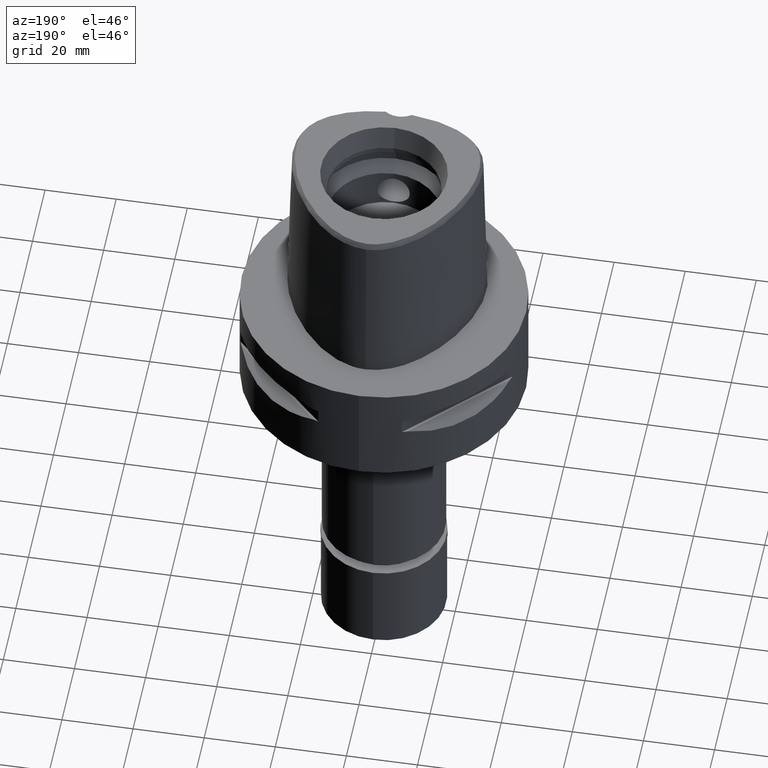
[diagram: clean part render]
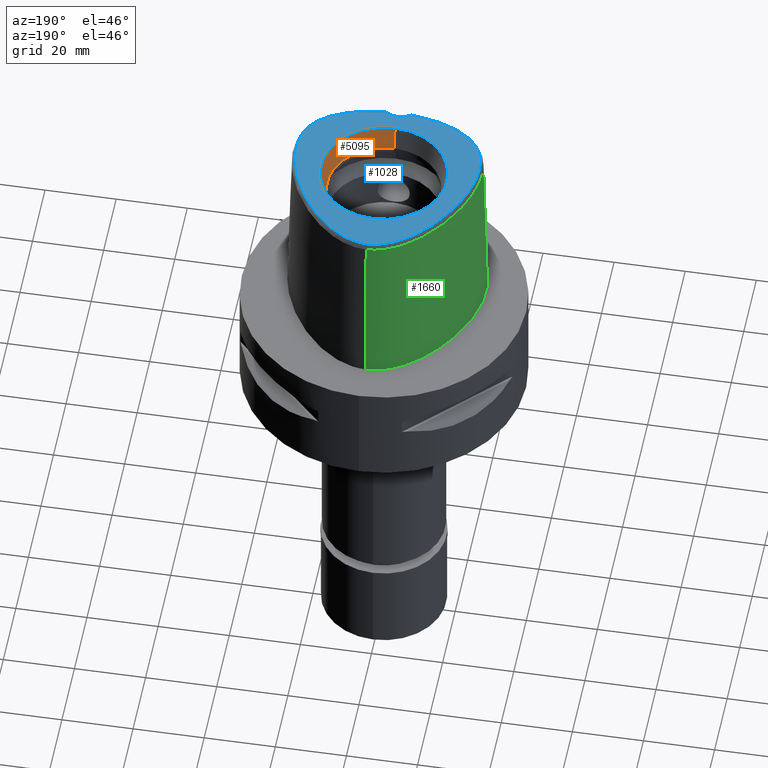
[diagram: same view with three faces highlighted in distinct colors, each labeled with its STEP entity id]
A machine part, auxiliary view with three faces highlighted in distinct colors.
Their STEP definitions:

[orange] entity #5095 — the highlighted conical surface has half-angle 15 deg.
#210 = VERTEX_POINT ( 'NONE', #2669 ) ;
#222 = CONICAL_SURFACE ( 'NONE', #4446, 16.85743741578000154, 0.2617993877991000029 ) ;
#298 = CARTESIAN_POINT ( 'NONE',  ( 0.0000000000000000000, 17.71487483155999954, 48.00000000000000000 ) ) ;
#459 = EDGE_CURVE ( 'NONE', #3315, #883, #4088, .T. ) ;
#713 = DIRECTION ( 'NONE',  ( 0.0000000000000000000, 0.0000000000000000000, 1.000000000000000000 ) ) ;
#883 = VERTEX_POINT ( 'NONE', #3407 ) ;
#1000 = VERTEX_POINT ( 'NONE', #298 ) ;
#1034 = DIRECTION ( 'NONE',  ( 0.0000000000000000000, 0.0000000000000000000, 1.000000000000000000 ) ) ;
#1041 = CIRCLE ( 'NONE', #1706, 17.71487483155999954 ) ;
#1568 = FACE_OUTER_BOUND ( 'NONE', #1589, .T. ) ;
#1589 = EDGE_LOOP ( 'NONE', ( #2359, #4867, #2053, #4509 ) ) ;
#1597 = CARTESIAN_POINT ( 'NONE',  ( 0.0000000000000000000, -16.00000000000000000, 41.60000000000000142 ) ) ;
#1680 = CARTESIAN_POINT ( 'NONE',  ( 0.0000000000000000000, -16.00000000000000000, 41.60000000000000142 ) ) ;
#1706 = AXIS2_PLACEMENT_3D ( 'NONE', #1783, #1034, #2614 ) ;
#1723 = EDGE_CURVE ( 'NONE', #883, #1000, #3869, .T. ) ;
#1783 = CARTESIAN_POINT ( 'NONE',  ( 0.0000000000000000000, 0.0000000000000000000, 48.00000000000000000 ) ) ;
#1930 = DIRECTION ( 'NONE',  ( 0.0000000000000000000, -0.2588190451025869088, 0.9659258262890505486 ) ) ;
#2053 = ORIENTED_EDGE ( 'NONE', *, *, #2418, .T. ) ;
#2359 = ORIENTED_EDGE ( 'NONE', *, *, #1723, .F. ) ;
#2418 = EDGE_CURVE ( 'NONE', #3315, #210, #3986, .T. ) ;
#2582 = DIRECTION ( 'NONE',  ( 0.0000000000000000000, 0.0000000000000000000, 1.000000000000000000 ) ) ;
#2614 = DIRECTION ( 'NONE',  ( 0.0000000000000000000, -1.000000000000000000, 0.0000000000000000000 ) ) ;
#2669 = CARTESIAN_POINT ( 'NONE',  ( 0.0000000000000000000, -17.71487483155999954, 48.00000000000000000 ) ) ;
#2707 = CARTESIAN_POINT ( 'NONE',  ( 0.0000000000000000000, 0.0000000000000000000, 44.79999999999999716 ) ) ;
#3093 = AXIS2_PLACEMENT_3D ( 'NONE', #4089, #2582, #4503 ) ;
#3315 = VERTEX_POINT ( 'NONE', #1680 ) ;
#3407 = CARTESIAN_POINT ( 'NONE',  ( 0.0000000000000000000, 16.00000000000000000, 41.60000000000000142 ) ) ;
#3478 = DIRECTION ( 'NONE',  ( 0.0000000000000000000, 0.2588190451025869088, 0.9659258262890505486 ) ) ;
#3869 = LINE ( 'NONE', #4667, #5101 ) ;
#3986 = LINE ( 'NONE', #1597, #4601 ) ;
#4088 = CIRCLE ( 'NONE', #3093, 16.00000000000000000 ) ;
#4089 = CARTESIAN_POINT ( 'NONE',  ( 0.0000000000000000000, 0.0000000000000000000, 41.60000000000000142 ) ) ;
#4322 = DIRECTION ( 'NONE',  ( 0.0000000000000000000, 1.000000000000000000, 0.0000000000000000000 ) ) ;
#4446 = AXIS2_PLACEMENT_3D ( 'NONE', #2707, #713, #4322 ) ;
#4503 = DIRECTION ( 'NONE',  ( 0.0000000000000000000, -1.000000000000000000, 0.0000000000000000000 ) ) ;
#4509 = ORIENTED_EDGE ( 'NONE', *, *, #4802, .T. ) ;
#4601 = VECTOR ( 'NONE', #1930, 1000.000000000000000 ) ;
#4667 = CARTESIAN_POINT ( 'NONE',  ( 0.0000000000000000000, 16.00000000000000000, 41.60000000000000142 ) ) ;
#4802 = EDGE_CURVE ( 'NONE', #210, #1000, #1041, .T. ) ;
#4867 = ORIENTED_EDGE ( 'NONE', *, *, #459, .F. ) ;
#5095 = ADVANCED_FACE ( 'NONE', ( #1568 ), #222, .F. ) ;
#5101 = VECTOR ( 'NONE', #3478, 1000.000000000000000 ) ;

[blue] entity #1028 — the highlighted planar face has unit normal (0, 0, 1).
#8 = CARTESIAN_POINT ( 'NONE',  ( 24.32795549673370772, -12.97211154200306460, 48.00000000001223555 ) ) ;
#22 = CARTESIAN_POINT ( 'NONE',  ( -18.05758772859757499, -19.36077714811488093, 47.99999999999477751 ) ) ;
#44 = CARTESIAN_POINT ( 'NONE',  ( -6.203520479231986684, 26.11107304853101141, 47.99999999999815259 ) ) ;
#61 = CARTESIAN_POINT ( 'NONE',  ( 9.079666835764575339, -22.67647771863383355, 48.00000000001173106 ) ) ;
#94 = CARTESIAN_POINT ( 'NONE',  ( -14.35357212123012616, 20.00684525407455183, 47.99999999999852918 ) ) ;
#116 = CARTESIAN_POINT ( 'NONE',  ( -21.64189922317169490, 9.570126786845586153, 47.99999999999801048 ) ) ;
#210 = VERTEX_POINT ( 'NONE', #2669 ) ;
#298 = CARTESIAN_POINT ( 'NONE',  ( 0.0000000000000000000, 17.71487483155999954, 48.00000000000000000 ) ) ;
#338 = CARTESIAN_POINT ( 'NONE',  ( 23.81116373424486099, 4.548397580874626200, 48.00000000000717648 ) ) ;
#344 = VERTEX_POINT ( 'NONE', #3295 ) ;
#364 = CARTESIAN_POINT ( 'NONE',  ( 23.26225374360337739, -14.77782433121194927, 48.00000000000923706 ) ) ;
#378 = CARTESIAN_POINT ( 'NONE',  ( -14.81597509389440148, -20.94671102737024881, 47.99999999999584332 ) ) ;
#394 = CARTESIAN_POINT ( 'NONE',  ( 25.14129527416575627, -0.06715740301631951958, 48.00000000000022737 ) ) ;
#417 = CARTESIAN_POINT ( 'NONE',  ( 19.78466709479669561, 12.88995995781714399, 47.99999999999869971 ) ) ;
#430 = CARTESIAN_POINT ( 'NONE',  ( -1.406513445700418918, 27.50987728443805125, 48.00000000000217426 ) ) ;
#443 = CARTESIAN_POINT ( 'NONE',  ( 21.18145661121652168, -17.09850743469696965, 48.00000000000058265 ) ) ;
#452 = CARTESIAN_POINT ( 'NONE',  ( -23.81131852266027948, 4.547972304024429313, 48.00000000000515143 ) ) ;
#476 = B_SPLINE_CURVE_WITH_KNOTS ( 'NONE', 3,
 ( #1829, #4221, #3827, #3438, #1464, #4629, #1082, #4249, #695, #2274, #3464, #5046, #1551, #2352, #3132, #4686, #773, #822, #3882, #1579, #1601, #2816, #417, #3938, #4404, #3207, #2404, #338, #800, #3909, #394, #3989, #748, #1963, #2302, #4709, #4785, #4329, #3544, #1516, #1209, #5071, #2717, #8, #1231, #1911, #364, #3159, #4735, #3489, #443, #2327, #2743, #4304, #1183, #3103, #4383, #1987, #2767, #2383, #2010, #61, #1134, #3591, #4356, #1633, #1934 ),
 .UNSPECIFIED., .F., .F.,
 ( 4, 1, 1, 1, 1, 1, 1, 1, 1, 1, 1, 1, 1, 1, 1, 1, 1, 1, 1, 1, 1, 1, 1, 1, 1, 1, 1, 1, 1, 1, 1, 1, 1, 1, 1, 1, 1, 1, 1, 1, 1, 1, 1, 1, 1, 1, 1, 1, 1, 1, 1, 1, 1, 1, 1, 1, 1, 1, 1, 1, 1, 1, 1, 1, 4 ),
 ( 0.0000000000000000000, 0.01585579672639991777, 0.03171159345210006197, 0.04756739017779998413, 0.06342318690360004840, 0.07927898362929997056, 0.09513478035499989272, 0.1109905770807000369, 0.1268463738063999591, 0.1427021705320999923, 0.1585579672578999455, 0.1744137639835999787, 0.1902695607093000119, 0.2061253574349999340, 0.2219811541607000782, 0.2378369508864000004, 0.2536927476120999225, 0.2695485443380000179, 0.2854043410636999401, 0.3012601377893999732, 0.3171159345151000064, 0.3329717312407999286, 0.3488275279665000728, 0.3646833246923000260, 0.3805391214179999482, 0.3963949181436999813, 0.4122507148694000145, 0.4281065115951000477, 0.4439623083207999699, 0.4598181050465000030, 0.4756739017723000673, 0.4915296984979999895, 0.5073854952237000226, 0.5232412919494000558, 0.5390970886750999780, 0.5549528854007999001, 0.5708086821265999644, 0.5866644788522999976, 0.6025202755780000308, 0.6183760723036999529, 0.6342318690293999861, 0.6500876657551999394, 0.6659434624808999725, 0.6817992592067000368, 0.6976550559323999590, 0.7135108526580999921, 0.7293666493838000253, 0.7452224461095000585, 0.7610782428351999807, 0.7769340395610000449, 0.7927898362866999671, 0.8086456330124000003, 0.8245014297380999224, 0.8403572264637999556, 0.8562130231894999888, 0.8720688199152000220, 0.8879246166409999752, 0.9037804133667199924, 0.9196362100924300176, 0.9354920068181400428, 0.9513478035438499569, 0.9672036002695799661, 0.9830593969952899913, 0.9989151937210170029, 1.000000000000000000 ),
 .UNSPECIFIED. ) ;
#500 = CARTESIAN_POINT ( 'NONE',  ( -24.78798701905787638, 1.406367702425548538, 47.99999999999597122 ) ) ;
#513 = EDGE_LOOP ( 'NONE', ( #2478, #4285, #2150 ) ) ;
#523 = CARTESIAN_POINT ( 'NONE',  ( -19.77143225162151907, -18.24138896763952644, 48.00000000000249401 ) ) ;
#539 = AXIS2_PLACEMENT_3D ( 'NONE', #1923, #2729, #736 ) ;
#638 = VERTEX_POINT ( 'NONE', #2145 ) ;
#695 = CARTESIAN_POINT ( 'NONE',  ( 5.331982176208874158, 26.48833275828314271, 48.00000000000198241 ) ) ;
#717 = VERTEX_POINT ( 'NONE', #5048 ) ;
#718 = DIRECTION ( 'NONE',  ( 0.0000000000000000000, 0.0000000000000000000, 1.000000000000000000 ) ) ;
#736 = DIRECTION ( 'NONE',  ( 1.000000000000000000, 0.0000000000000000000, 0.0000000000000000000 ) ) ;
#748 = CARTESIAN_POINT ( 'NONE',  ( 25.60516200877453130, -2.794192459352460745, 48.00000000000189715 ) ) ;
#773 = CARTESIAN_POINT ( 'NONE',  ( 13.24267791555362095, 21.12418368643609767, 48.00000000000156319 ) ) ;
#800 = CARTESIAN_POINT ( 'NONE',  ( 24.34579675531461973, 2.948329282943511043, 48.00000000001264056 ) ) ;
#811 = CARTESIAN_POINT ( 'NONE',  ( -25.12916461511497701, -10.86541650940748305, 47.99999999999975131 ) ) ;
#822 = CARTESIAN_POINT ( 'NONE',  ( 14.35433142683246110, 20.00604447575191713, 48.00000000000167688 ) ) ;
#835 = CARTESIAN_POINT ( 'NONE',  ( -11.07816725942378966, 23.03133635782052480, 48.00000000000034817 ) ) ;
#885 = CARTESIAN_POINT ( 'NONE',  ( -24.62272929601614990, -12.31262433039161763, 47.99999999999684519 ) ) ;
#910 = CARTESIAN_POINT ( 'NONE',  ( -24.32740975878640555, -12.97324844465297566, 48.00000000000115818 ) ) ;
#952 = AXIS2_PLACEMENT_3D ( 'NONE', #4274, #718, #4730 ) ;
#981 = ORIENTED_EDGE ( 'NONE', *, *, #1578, .F. ) ;
#1000 = VERTEX_POINT ( 'NONE', #298 ) ;
#1028 = ADVANCED_FACE ( 'NONE', ( #5060, #2704 ), #4319, .T. ) ;
#1034 = DIRECTION ( 'NONE',  ( 0.0000000000000000000, 0.0000000000000000000, 1.000000000000000000 ) ) ;
#1041 = CIRCLE ( 'NONE', #1706, 17.71487483155999954 ) ;
#1082 = CARTESIAN_POINT ( 'NONE',  ( 3.680297990135756425, 27.05591354499543755, 48.00000000000463274 ) ) ;
#1134 = CARTESIAN_POINT ( 'NONE',  ( 7.396182376303273465, -22.99483633013899819, 48.00000000000697042 ) ) ;
#1172 = CARTESIAN_POINT ( 'NONE',  ( -3.692743038414145307, -23.43666978756976960, 48.00000000000267875 ) ) ;
#1183 = CARTESIAN_POINT ( 'NONE',  ( 18.06021793802974784, -19.35923481219706588, 48.00000000000124345 ) ) ;
#1195 = CARTESIAN_POINT ( 'NONE',  ( -4.489954052493658310, 26.80204639255709509, 48.00000000000770939 ) ) ;
#1209 = CARTESIAN_POINT ( 'NONE',  ( 25.12949508357444728, -10.86427360166955047, 48.00000000000255795 ) ) ;
#1222 = CARTESIAN_POINT ( 'NONE',  ( -20.74831938584029345, 11.24670202904551353, 48.00000000000017053 ) ) ;
#1231 = CARTESIAN_POINT ( 'NONE',  ( 24.00708073425614941, -13.59389763843064003, 48.00000000001109157 ) ) ;
#1246 = CARTESIAN_POINT ( 'NONE',  ( -16.58720414441573965, 17.44590650687450406, 48.00000000000029843 ) ) ;
#1267 = CARTESIAN_POINT ( 'NONE',  ( -25.78814000082430979, -5.219183132163360384, 48.00000000000524381 ) ) ;
#1295 = CARTESIAN_POINT ( 'NONE',  ( -24.34597371489009277, 2.947766319392882028, 48.00000000000301981 ) ) ;
#1364 = AXIS2_PLACEMENT_3D ( 'NONE', #3517, #5107, #4760 ) ;
#1464 = CARTESIAN_POINT ( 'NONE',  ( 2.140583849880650646, 27.40603513869489660, 48.00000000000225953 ) ) ;
#1516 = CARTESIAN_POINT ( 'NONE',  ( 25.33687583872331217, -10.06999584063372488, 48.00000000000845546 ) ) ;
#1534 = CARTESIAN_POINT ( 'NONE',  ( -10.66374418708377547, -22.30593187528287658, 48.00000000000354561 ) ) ;
#1551 = CARTESIAN_POINT ( 'NONE',  ( 9.029067995420112069, 24.52649931750329415, 48.00000000000886047 ) ) ;
#1578 = EDGE_CURVE ( 'NONE', #1000, #210, #1777, .T. ) ;
#1579 = CARTESIAN_POINT ( 'NONE',  ( 16.58774972841820627, 17.44522137221949976, 48.00000000000767386 ) ) ;
#1590 = CARTESIAN_POINT ( 'NONE',  ( -25.72853642077308578, -4.045150056830097540, 47.99999999999900524 ) ) ;
#1601 = CARTESIAN_POINT ( 'NONE',  ( 17.68852893097503554, 16.00958332232134396, 48.00000000000597566 ) ) ;
#1618 = CARTESIAN_POINT ( 'NONE',  ( -25.33661149944298074, -10.07113708571159272, 48.00000000000527933 ) ) ;
#1633 = CARTESIAN_POINT ( 'NONE',  ( 3.695072017993034752, -23.43648746218643097, 48.00000000000385825 ) ) ;
#1666 = CARTESIAN_POINT ( 'NONE',  ( -21.17991838301995244, -17.09989881138081458, 47.99999999999885603 ) ) ;
#1688 = CARTESIAN_POINT ( 'NONE',  ( -19.78446217835506360, 12.89029827906817616, 48.00000000000235900 ) ) ;
#1706 = AXIS2_PLACEMENT_3D ( 'NONE', #1783, #1034, #2614 ) ;
#1777 = CIRCLE ( 'NONE', #952, 17.71487483155999954 ) ;
#1783 = CARTESIAN_POINT ( 'NONE',  ( 0.0000000000000000000, 0.0000000000000000000, 48.00000000000000000 ) ) ;
#1829 = CARTESIAN_POINT ( 'NONE',  ( -2.553408000949999908E-11, 27.58331912251000162, 48.00000000000000000 ) ) ;
#1886 = EDGE_CURVE ( 'NONE', #638, #717, #2094, .T. ) ;
#1911 = CARTESIAN_POINT ( 'NONE',  ( 23.65541542674895226, -14.18997106324581381, 48.00000000000692069 ) ) ;
#1923 = CARTESIAN_POINT ( 'NONE',  ( 0.0000000000000000000, 0.0000000000000000000, 48.00000000000000000 ) ) ;
#1934 = CARTESIAN_POINT ( 'NONE',  ( 3.652533226355999751, -23.43985283522000174, 48.00000000000000000 ) ) ;
#1950 = CARTESIAN_POINT ( 'NONE',  ( -15.99341638177189218, -20.43562447748576716, 48.00000000000099476 ) ) ;
#1963 = CARTESIAN_POINT ( 'NONE',  ( 25.72845965679956137, -4.044145215521631087, 48.00000000000743938 ) ) ;
#1987 = CARTESIAN_POINT ( 'NONE',  ( 14.81975810290886564, -20.94516920634536561, 48.00000000000678568 ) ) ;
#1999 = CARTESIAN_POINT ( 'NONE',  ( -0.6921675427513680479, 27.57027402750469491, 48.00000000000196110 ) ) ;
#2010 = CARTESIAN_POINT ( 'NONE',  ( 10.66892483387039903, -22.30459704282522537, 48.00000000001040235 ) ) ;
#2021 = CARTESIAN_POINT ( 'NONE',  ( -5.330667503235669180, 26.48886318459817701, 47.99999999999916156 ) ) ;
#2046 = CARTESIAN_POINT ( 'NONE',  ( -22.82072892860091073, -15.36398915678148214, 48.00000000000603961 ) ) ;
#2069 = CARTESIAN_POINT ( 'NONE',  ( -22.45665628223360244, 7.877471279648480262, 47.99999999999928946 ) ) ;
#2088 = CARTESIAN_POINT ( 'NONE',  ( -25.51017841222235560, -9.223923978199115581, 48.00000000000016342 ) ) ;
#2094 = B_SPLINE_CURVE_WITH_KNOTS ( 'NONE', 3,
 ( #3064, #1172, #5087, #2755, #2670, #4264, #1534, #3120, #2341, #378, #1950, #2880, #22, #3196, #523, #2490, #1666, #4393, #2853, #2046, #4443, #4073, #4465, #910, #885, #3628, #811, #1618, #2088, #2804, #2466, #4820, #1267, #1590, #3651, #2828, #3239, #500, #1295, #452, #4049, #2069, #116, #1222, #1688, #3169, #4797, #1246, #2392, #94, #3268, #4746, #835, #2414, #4846, #3218, #3977, #44, #2021, #1195, #2783, #4000, #4370, #430, #1999, #3607, #3579 ),
 .UNSPECIFIED., .F., .F.,
 ( 4, 1, 1, 1, 1, 1, 1, 1, 1, 1, 1, 1, 1, 1, 1, 1, 1, 1, 1, 1, 1, 1, 1, 1, 1, 1, 1, 1, 1, 1, 1, 1, 1, 1, 1, 1, 1, 1, 1, 1, 1, 1, 1, 1, 1, 1, 1, 1, 1, 1, 1, 1, 1, 1, 1, 1, 1, 1, 1, 1, 1, 1, 1, 1, 4 ),
 ( 0.0000000000000000000, 0.001025211071800091744, 0.01688195375320000746, 0.03273869643469995427, 0.04859543911610009204, 0.06445218179750000775, 0.08030892447889992347, 0.09616566716030006123, 0.1120224098416999770, 0.1278791525231999238, 0.1437358952045000304, 0.1595926378859000572, 0.1754493805672999729, 0.1913061232486999996, 0.2071628659301000264, 0.2230196086114999421, 0.2388763512929999999, 0.2547330939744000267, 0.2705898366558000534, 0.2864465793371999691, 0.3023033220184999648, 0.3181600646999001025, 0.3340168073814000493, 0.3498735500627999651, 0.3657302927441999918, 0.3815870354256000185, 0.3974437781070000453, 0.4133005207884000720, 0.4291572634697999877, 0.4450140061513000456, 0.4608707488326000412, 0.4767274915139999569, 0.4925842341953999837, 0.5084409768768000104, 0.5242977195582000371, 0.5401544622396999840, 0.5560112049211000107, 0.5718679476025000374, 0.5877246902838999532, 0.6035814329652000598, 0.6194381756466000866, 0.6352949183280000023, 0.6511516610095000601, 0.6670084036908999758, 0.6828651463723000026, 0.6987218890537000293, 0.7145786317350999450, 0.7304353744164999718, 0.7462921170980000296, 0.7621488597793000253, 0.7780056024607000520, 0.7938623451421000787, 0.8097190878234999944, 0.8255758305049000212, 0.8414325731862999369, 0.8572893158677999947, 0.8731460585492000215, 0.8890028012306000482, 0.9048595439119599959, 0.9207162865933600226, 0.9365730292747700414, 0.9524297719561699571, 0.9682865146375799759, 0.9841432573189800026, 1.000000000000000000 ),
 .UNSPECIFIED. ) ;
#2116 = EDGE_CURVE ( 'NONE', #717, #344, #476, .T. ) ;
#2128 = EDGE_CURVE ( 'NONE', #344, #638, #3274, .T. ) ;
#2145 = CARTESIAN_POINT ( 'NONE',  ( -3.652529789304999941, -23.43985019791999846, 48.00000000000000000 ) ) ;
#2150 = ORIENTED_EDGE ( 'NONE', *, *, #2128, .F. ) ;
#2274 = CARTESIAN_POINT ( 'NONE',  ( 6.204805495149819272, 26.11047595223834605, 48.00000000000726175 ) ) ;
#2302 = CARTESIAN_POINT ( 'NONE',  ( 25.78811069501464104, -5.218135357747751613, 48.00000000000721201 ) ) ;
#2327 = CARTESIAN_POINT ( 'NONE',  ( 20.51253914625195307, -17.67119446946093930, 48.00000000000061107 ) ) ;
#2341 = CARTESIAN_POINT ( 'NONE',  ( -13.53666233734298530, -21.43297585322737930, 47.99999999999874944 ) ) ;
#2352 = CARTESIAN_POINT ( 'NONE',  ( 10.03889926273868127, 23.82643791975360870, 48.00000000000882494 ) ) ;
#2383 = CARTESIAN_POINT ( 'NONE',  ( 12.15683615293691311, -21.88711351951106820, 47.99999999999997868 ) ) ;
#2392 = CARTESIAN_POINT ( 'NONE',  ( -15.47246034442112439, 18.77924032486898653, 48.00000000000290612 ) ) ;
#2404 = CARTESIAN_POINT ( 'NONE',  ( 23.18188527997639881, 6.195157684106848528, 48.00000000000304112 ) ) ;
#2414 = CARTESIAN_POINT ( 'NONE',  ( -10.03780479163847339, 23.82723751530624767, 48.00000000000140687 ) ) ;
#2466 = CARTESIAN_POINT ( 'NONE',  ( -25.74147105879059794, -7.353240448489849257, 48.00000000000159162 ) ) ;
#2478 = ORIENTED_EDGE ( 'NONE', *, *, #2116, .F. ) ;
#2490 = CARTESIAN_POINT ( 'NONE',  ( -20.51077223929847904, -17.67263102127446572, 47.99999999999950973 ) ) ;
#2614 = DIRECTION ( 'NONE',  ( 0.0000000000000000000, -1.000000000000000000, 0.0000000000000000000 ) ) ;
#2669 = CARTESIAN_POINT ( 'NONE',  ( 0.0000000000000000000, -17.71487483155999954, 48.00000000000000000 ) ) ;
#2670 = CARTESIAN_POINT ( 'NONE',  ( -7.390055773641294401, -22.99586658608131629, 47.99999999999932498 ) ) ;
#2704 = FACE_BOUND ( 'NONE', #2988, .T. ) ;
#2717 = CARTESIAN_POINT ( 'NONE',  ( 24.62320007856847326, -12.31148373401311247, 48.00000000000669331 ) ) ;
#2729 = DIRECTION ( 'NONE',  ( 0.0000000000000000000, 0.0000000000000000000, 1.000000000000000000 ) ) ;
#2736 = ORIENTED_EDGE ( 'NONE', *, *, #4802, .F. ) ;
#2743 = CARTESIAN_POINT ( 'NONE',  ( 19.77345709183098066, -18.23990985540388365, 47.99999999999967315 ) ) ;
#2755 = CARTESIAN_POINT ( 'NONE',  ( -5.621443921966159607, -23.25305008129511464, 48.00000000000448352 ) ) ;
#2767 = CARTESIAN_POINT ( 'NONE',  ( 13.54089058450237459, -21.43147460489070966, 48.00000000000824940 ) ) ;
#2783 = CARTESIAN_POINT ( 'NONE',  ( -3.678923649487048753, 27.05630543830366719, 47.99999999999898392 ) ) ;
#2804 = CARTESIAN_POINT ( 'NONE',  ( -25.64644810599106606, -8.319642749356395584, 48.00000000000550671 ) ) ;
#2816 = CARTESIAN_POINT ( 'NONE',  ( 18.76051936065026382, 14.48366014232832732, 48.00000000001285372 ) ) ;
#2828 = CARTESIAN_POINT ( 'NONE',  ( -25.41186334295214166, -1.469639852779993872, 48.00000000000116529 ) ) ;
#2853 = CARTESIAN_POINT ( 'NONE',  ( -22.32985285488276617, -15.94550431091040821, 48.00000000000615330 ) ) ;
#2880 = CARTESIAN_POINT ( 'NONE',  ( -17.07251346402498982, -19.90534499102160382, 47.99999999999827338 ) ) ;
#2988 = EDGE_LOOP ( 'NONE', ( #2736, #981 ) ) ;
#3064 = CARTESIAN_POINT ( 'NONE',  ( -3.652529789304999941, -23.43985019791999846, 48.00000000000000000 ) ) ;
#3103 = CARTESIAN_POINT ( 'NONE',  ( 17.07549476912438635, -19.90378693825492462, 48.00000000000908074 ) ) ;
#3120 = CARTESIAN_POINT ( 'NONE',  ( -12.15213727002773680, -21.88854758767111619, 48.00000000000394351 ) ) ;
#3132 = CARTESIAN_POINT ( 'NONE',  ( 11.07918744940821654, 23.03051546725189169, 48.00000000000082423 ) ) ;
#3159 = CARTESIAN_POINT ( 'NONE',  ( 22.82172265264393118, -15.36274108902206770, 48.00000000000704148 ) ) ;
#3169 = CARTESIAN_POINT ( 'NONE',  ( -18.76020591297632834, 14.48413071376100980, 48.00000000000695621 ) ) ;
#3196 = CARTESIAN_POINT ( 'NONE',  ( -18.95547945644910470, -18.80500687502049573, 48.00000000000218847 ) ) ;
#3207 = CARTESIAN_POINT ( 'NONE',  ( 22.45659887780520947, 7.877591736060656658, 48.00000000000458300 ) ) ;
#3218 = CARTESIAN_POINT ( 'NONE',  ( -8.052265342579033813, 25.13651235630688063, 47.99999999999637623 ) ) ;
#3239 = CARTESIAN_POINT ( 'NONE',  ( -25.14146662215851791, -0.06794041304870930553, 47.99999999999752731 ) ) ;
#3268 = CARTESIAN_POINT ( 'NONE',  ( -13.24182048141069856, 21.12501160990345284, 47.99999999999568701 ) ) ;
#3274 = CIRCLE ( 'NONE', #1364, 6.000000000000002665 ) ;
#3295 = CARTESIAN_POINT ( 'NONE',  ( 3.652533226355999751, -23.43985283522000174, 48.00000000000000000 ) ) ;
#3438 = CARTESIAN_POINT ( 'NONE',  ( 1.407937999592545397, 27.50970958195818028, 48.00000000000246558 ) ) ;
#3464 = CARTESIAN_POINT ( 'NONE',  ( 7.112111422624756152, 25.66156608519798255, 48.00000000000716938 ) ) ;
#3489 = CARTESIAN_POINT ( 'NONE',  ( 21.78596494080941426, -16.52262878100312449, 47.99999999999959499 ) ) ;
#3517 = CARTESIAN_POINT ( 'NONE',  ( 0.0000000000000000000, -28.19999999999999929, 48.00000000000000000 ) ) ;
#3544 = CARTESIAN_POINT ( 'NONE',  ( 25.51037851176426230, -9.222789616917856037, 48.00000000001212186 ) ) ;
#3579 = CARTESIAN_POINT ( 'NONE',  ( -2.553408000949999908E-11, 27.58331912251000162, 48.00000000000000000 ) ) ;
#3591 = CARTESIAN_POINT ( 'NONE',  ( 5.628119991152697565, -23.25222728397175587, 48.00000000000337508 ) ) ;
#3607 = CARTESIAN_POINT ( 'NONE',  ( -0.2321695341564720683, 27.58331912251657769, 47.99999999999752731 ) ) ;
#3628 = CARTESIAN_POINT ( 'NONE',  ( -24.89056289416894430, -11.61105474084670064, 48.00000000000250111 ) ) ;
#3651 = CARTESIAN_POINT ( 'NONE',  ( -25.60527911802743617, -2.795135548250292423, 48.00000000000474643 ) ) ;
#3827 = CARTESIAN_POINT ( 'NONE',  ( 0.6937438505403716871, 27.57019898700950478, 48.00000000000281375 ) ) ;
#3882 = CARTESIAN_POINT ( 'NONE',  ( 15.47311546589609854, 18.77848662925139678, 48.00000000000503775 ) ) ;
#3909 = CARTESIAN_POINT ( 'NONE',  ( 24.78780591084813167, 1.407047860335504108, 47.99999999999845102 ) ) ;
#3938 = CARTESIAN_POINT ( 'NONE',  ( 20.74842146925440289, 11.24651447313606134, 48.00000000000866152 ) ) ;
#3977 = CARTESIAN_POINT ( 'NONE',  ( -7.110865803014362996, 25.66222324296633417, 48.00000000000397193 ) ) ;
#3989 = CARTESIAN_POINT ( 'NONE',  ( 25.41171405094603841, -1.468769615953148255, 48.00000000000520117 ) ) ;
#4000 = CARTESIAN_POINT ( 'NONE',  ( -2.895995683504538842, 27.25632069045302330, 48.00000000000338929 ) ) ;
#4049 = CARTESIAN_POINT ( 'NONE',  ( -23.18199738827003031, 6.194888181192859555, 48.00000000000181899 ) ) ;
#4073 = CARTESIAN_POINT ( 'NONE',  ( -23.65469623605201477, -14.19111717468698686, 48.00000000000073896 ) ) ;
#4221 = CARTESIAN_POINT ( 'NONE',  ( 0.2325907962420827035, 27.58331912251327012, 48.00000000000081002 ) ) ;
#4249 = CARTESIAN_POINT ( 'NONE',  ( 4.491298471527488623, 26.80158405531848231, 48.00000000000654410 ) ) ;
#4264 = CARTESIAN_POINT ( 'NONE',  ( -9.073991136863565288, -22.67767904108731969, 47.99999999999684519 ) ) ;
#4274 = CARTESIAN_POINT ( 'NONE',  ( 0.0000000000000000000, 0.0000000000000000000, 48.00000000000000000 ) ) ;
#4285 = ORIENTED_EDGE ( 'NONE', *, *, #1886, .F. ) ;
#4304 = CARTESIAN_POINT ( 'NONE',  ( 18.95779336837248508, -18.80349047534947715, 48.00000000000073896 ) ) ;
#4319 = PLANE ( 'NONE',  #539 ) ;
#4329 = CARTESIAN_POINT ( 'NONE',  ( 25.64658655007783494, -8.318518488027452307, 48.00000000001078604 ) ) ;
#4356 = CARTESIAN_POINT ( 'NONE',  ( 4.358863301034094029, -23.38302754646320381, 48.00000000000636646 ) ) ;
#4370 = CARTESIAN_POINT ( 'NONE',  ( -2.139154069217541476, 27.40627708266804774, 48.00000000000468958 ) ) ;
#4383 = CARTESIAN_POINT ( 'NONE',  ( 15.99678577414479363, -20.43406366493001158, 48.00000000000254374 ) ) ;
#4393 = CARTESIAN_POINT ( 'NONE',  ( -21.78463111685217513, -16.52397191851181901, 48.00000000000464695 ) ) ;
#4404 = CARTESIAN_POINT ( 'NONE',  ( 21.64191216433082587, 9.570096010442222578, 48.00000000000341061 ) ) ;
#4443 = CARTESIAN_POINT ( 'NONE',  ( -23.26140416530115473, -14.77902311538156255, 47.99999999999670308 ) ) ;
#4465 = CARTESIAN_POINT ( 'NONE',  ( -24.00645943640846625, -13.59502449744030805, 48.00000000000041922 ) ) ;
#4629 = CARTESIAN_POINT ( 'NONE',  ( 2.897393261679864107, 27.25600202852417908, 48.00000000000071765 ) ) ;
#4686 = CARTESIAN_POINT ( 'NONE',  ( 12.14811716929212437, 22.13187320258709079, 47.99999999999985789 ) ) ;
#4709 = CARTESIAN_POINT ( 'NONE',  ( 25.79052179444665072, -6.319355031380196053, 48.00000000001080025 ) ) ;
#4730 = DIRECTION ( 'NONE',  ( 0.0000000000000000000, 1.000000000000000000, 0.0000000000000000000 ) ) ;
#4735 = CARTESIAN_POINT ( 'NONE',  ( 22.33100613406375601, -15.94420923685072466, 48.00000000000493827 ) ) ;
#4746 = CARTESIAN_POINT ( 'NONE',  ( -12.14717624328801016, 22.13270362301003757, 47.99999999999980105 ) ) ;
#4760 = DIRECTION ( 'NONE',  ( 0.6087555377260667200, 0.7933578607966567109, 0.0000000000000000000 ) ) ;
#4785 = CARTESIAN_POINT ( 'NONE',  ( 25.74155027847521637, -7.352132003089936418, 48.00000000000579803 ) ) ;
#4797 = CARTESIAN_POINT ( 'NONE',  ( -17.68810259327355183, 16.01016819644468825, 48.00000000000110134 ) ) ;
#4802 = EDGE_CURVE ( 'NONE', #210, #1000, #1041, .T. ) ;
#4820 = CARTESIAN_POINT ( 'NONE',  ( -25.79049889473665047, -6.320436011330606618, 47.99999999999880629 ) ) ;
#4846 = CARTESIAN_POINT ( 'NONE',  ( -9.027913645276317567, 24.52726119145669514, 47.99999999999685230 ) ) ;
#5046 = CARTESIAN_POINT ( 'NONE',  ( 8.053467330374505906, 25.13580020532249293, 48.00000000000466827 ) ) ;
#5048 = CARTESIAN_POINT ( 'NONE',  ( -2.553408000949999908E-11, 27.58331912251000162, 48.00000000000000000 ) ) ;
#5060 = FACE_OUTER_BOUND ( 'NONE', #513, .T. ) ;
#5071 = CARTESIAN_POINT ( 'NONE',  ( 24.89096213678870129, -11.60991207239820078, 48.00000000000040501 ) ) ;
#5087 = CARTESIAN_POINT ( 'NONE',  ( -4.354443962178160987, -23.38344539136317479, 48.00000000000426326 ) ) ;
#5107 = DIRECTION ( 'NONE',  ( 0.0000000000000000000, 0.0000000000000000000, 1.000000000000000000 ) ) ;

[green] entity #1660 — the highlighted face is a freeform B-spline surface patch.
#29 = CARTESIAN_POINT ( 'NONE',  ( -1.451045074373000022E-08, -24.57504746727000011, 40.00000005214000254 ) ) ;
#52 = CARTESIAN_POINT ( 'NONE',  ( -17.14519265487999888, 19.02219895896999802, 31.32395470758999423 ) ) ;
#78 = CARTESIAN_POINT ( 'NONE',  ( -27.06950058470999920, -5.357664960112000330, 31.32395470758999423 ) ) ;
#81 = CARTESIAN_POINT ( 'NONE',  ( -4.160790905031581666, -24.72274124955069396, 26.84178595757023800 ) ) ;
#100 = CARTESIAN_POINT ( 'NONE',  ( 0.6077626423947999346, 29.58843421414999852, -0.9304144962650000572 ) ) ;
#105 = CARTESIAN_POINT ( 'NONE',  ( -1.482686770870139670, -24.81966152212502763, 29.30289444251078734 ) ) ;
#121 = CARTESIAN_POINT ( 'NONE',  ( -26.01411825428999691, 1.699187955590999888, 31.32395470758999423 ) ) ;
#128 = CARTESIAN_POINT ( 'NONE',  ( -3.900686180413632798, -24.73222278675434538, 27.34720371155059482 ) ) ;
#143 = CARTESIAN_POINT ( 'NONE',  ( -26.77222810418911081, 1.900468739774732407, 1.591330557344089458E-06 ) ) ;
#152 = ORIENTED_EDGE ( 'NONE', *, *, #618, .F. ) ;
#153 = CARTESIAN_POINT ( 'NONE',  ( -2.652045588673546117, -24.78435656486181671, 28.70018943685018797 ) ) ;
#171 = CARTESIAN_POINT ( 'NONE',  ( -26.00056140252999981, -13.24168030123999884, 15.19677010566000064 ) ) ;
#172 = CARTESIAN_POINT ( 'NONE',  ( -4.472216406693000579, -24.20008985674000357, 46.52070903171000538 ) ) ;
#178 = CARTESIAN_POINT ( 'NONE',  ( -4.201380620709785241, -24.72153596869751624, 26.74670933509912274 ) ) ;
#192 = CARTESIAN_POINT ( 'NONE',  ( -21.19046238773000113, -19.29498366458999925, 15.19677010566000064 ) ) ;
#197 = CARTESIAN_POINT ( 'NONE',  ( -3.245740051672676874, -24.92006245179830159, 21.81130774429478336 ) ) ;
#201 = LINE ( 'NONE', #2605, #949 ) ;
#231 = CARTESIAN_POINT ( 'NONE',  ( -9.304563385799507813, 26.79191402844792691, 1.591330557344089458E-06 ) ) ;
#243 = CARTESIAN_POINT ( 'NONE',  ( -2.334460937771000388, -24.41161095319999674, 47.45113930950999759 ) ) ;
#257 = CARTESIAN_POINT ( 'NONE',  ( -25.20914246289913763, 6.827421859969049045, 1.591330557344089458E-06 ) ) ;
#270 = CARTESIAN_POINT ( 'NONE',  ( -20.94550184267999526, -18.97246393747999704, 31.32395470758999423 ) ) ;
#278 = CARTESIAN_POINT ( 'NONE',  ( -3.864901861996223875, -24.85421915751039990, 22.59833191710567846 ) ) ;
#307 = CARTESIAN_POINT ( 'NONE',  ( -2.897876354792337406, 28.19692242653904302, 46.52070903171008354 ) ) ;
#308 = CARTESIAN_POINT ( 'NONE',  ( -2.039991806420665466, -25.00858519317946360, 20.93235562228052515 ) ) ;
#313 = CARTESIAN_POINT ( 'NONE',  ( -17.75297948082780408, 19.52218747459670567, 1.591330557344089458E-06 ) ) ;
#317 = VERTEX_POINT ( 'NONE', #2881 ) ;
#360 = CARTESIAN_POINT ( 'NONE',  ( -4.602965878455999693, -24.35127227233000013, 40.00000000000000000 ) ) ;
#412 = CARTESIAN_POINT ( 'NONE',  ( -4.472216406693000579, -24.20008985674000357, 46.52070903171000538 ) ) ;
#437 = CARTESIAN_POINT ( 'NONE',  ( -2.979937747177999974, 28.57037854773999896, 31.32395470758999423 ) ) ;
#457 = CARTESIAN_POINT ( 'NONE',  ( -27.47379250810000073, -5.347524337083999768, 15.19677010566000064 ) ) ;
#466 = CARTESIAN_POINT ( 'NONE',  ( -3.192130741525159188, -24.76262039752748123, 28.24235843699961634 ) ) ;
#484 = CARTESIAN_POINT ( 'NONE',  ( -17.45811262076999881, 19.27961880187999810, 15.19677010566000064 ) ) ;
#488 = CARTESIAN_POINT ( 'NONE',  ( -4.156037652092124723, -24.81598364112163679, 23.14362525770374646 ) ) ;
#506 = CARTESIAN_POINT ( 'NONE',  ( -6.271543170702000403, 28.37237220565999962, -0.9304144962650000572 ) ) ;
#511 = CARTESIAN_POINT ( 'NONE',  ( -2.352923008986410824, -24.79499099983797805, 28.89459205334613046 ) ) ;
#528 = CARTESIAN_POINT ( 'NONE',  ( -27.70696775949999946, -8.754869100894998368, -0.9304144962650000572 ) ) ;
#538 = CARTESIAN_POINT ( 'NONE',  ( -2.944900302943597836, -24.77298581947536249, 28.46923970402221826 ) ) ;
#552 = CARTESIAN_POINT ( 'NONE',  ( -15.29776364837130131, -22.96525386911048017, 1.591330557344089458E-06 ) ) ;
#558 = CARTESIAN_POINT ( 'NONE',  ( -25.65830880206000231, -14.81383149384000042, -0.9304144962650000572 ) ) ;
#564 = CARTESIAN_POINT ( 'NONE',  ( -2.249867388139983770, -24.79844751147312820, 28.95562542824797703 ) ) ;
#590 = CARTESIAN_POINT ( 'NONE',  ( -3.265305598819546962, -24.91820214815111711, 21.83126415608266058 ) ) ;
#607 = CARTESIAN_POINT ( 'NONE',  ( -2.354156827870999447, -24.81494219842000248, 31.32395470758999423 ) ) ;
#613 = CARTESIAN_POINT ( 'NONE',  ( -3.957281473798043514, -24.84276546235786043, 22.75305380327923999 ) ) ;
#618 = EDGE_CURVE ( 'NONE', #4721, #4061, #5120, .T. ) ;
#643 = CARTESIAN_POINT ( 'NONE',  ( -27.68378749877611966, -8.751933588728844526, 1.591330557344089458E-06 ) ) ;
#647 = VERTEX_POINT ( 'NONE', #1754 ) ;
#655 = CARTESIAN_POINT ( 'NONE',  ( -17.98126122912999847, -20.40884541595000101, 47.45113930950999759 ) ) ;
#689 = CARTESIAN_POINT ( 'NONE',  ( -12.44957317646822759, 23.16260189109472378, 46.52070903171007643 ) ) ;
#723 = CARTESIAN_POINT ( 'NONE',  ( -1.597093597969000331E-11, -25.57499999999999929, 7.627232179174998351E-14 ) ) ;
#769 = CARTESIAN_POINT ( 'NONE',  ( -26.68853359098858036, -5.367220537272795688, 46.52070903171007643 ) ) ;
#794 = CARTESIAN_POINT ( 'NONE',  ( -26.52477687770729986, -8.605158286270006229, 46.52070903171007643 ) ) ;
#817 = CARTESIAN_POINT ( 'NONE',  ( -3.067023396894000165, 28.96669974098000111, 15.19677010566000064 ) ) ;
#840 = CARTESIAN_POINT ( 'NONE',  ( -8.894849806042000040, 26.12169677061000073, 31.32395470758999423 ) ) ;
#844 = CARTESIAN_POINT ( 'NONE',  ( -2.466259342607413974, -24.79105701084886348, 28.82372012011356688 ) ) ;
#864 = CARTESIAN_POINT ( 'NONE',  ( -12.96695409482999928, 23.75598709301999989, 15.19677010566000064 ) ) ;
#872 = CARTESIAN_POINT ( 'NONE',  ( -3.657706900528191252, -24.74222987758969694, 27.72260022702113247 ) ) ;
#889 = CARTESIAN_POINT ( 'NONE',  ( -24.48145223199000142, 6.531540498034000386, 31.32395470758999423 ) ) ;
#894 = CARTESIAN_POINT ( 'NONE',  ( -4.515545264919024859, -24.72200876241213052, 25.57765437787082163 ) ) ;
#919 = CARTESIAN_POINT ( 'NONE',  ( -26.76156704091999927, -1.884109322480999937, 31.32395470758999423 ) ) ;
#920 = CARTESIAN_POINT ( 'NONE',  ( -4.516620139914707011, -24.24973684088320525, 44.34713935447333455 ) ) ;
#924 = CARTESIAN_POINT ( 'NONE',  ( -1.003044292487226929, -24.82866638025621953, 29.44055839642896899 ) ) ;
#940 = CARTESIAN_POINT ( 'NONE',  ( -23.81701505771999905, -15.41783915992999887, 47.45113930950999759 ) ) ;
#945 = CARTESIAN_POINT ( 'NONE',  ( -3.205390121192459585, -24.76204090357539656, 28.22925085367092279 ) ) ;
#949 = VECTOR ( 'NONE', #4603, 1000.000000000000000 ) ;
#964 = CARTESIAN_POINT ( 'NONE',  ( -15.01246784126000122, -22.23414197163999972, 31.32395470758999423 ) ) ;
#989 = CARTESIAN_POINT ( 'NONE',  ( -6.695047936570999170, -25.26858194668999857, -0.9304144962650000572 ) ) ;
#1014 = CARTESIAN_POINT ( 'NONE',  ( -24.60869382197000022, -14.20783600182000050, 47.45113930950999759 ) ) ;
#1021 = CARTESIAN_POINT ( 'NONE',  ( -2.349040166738161517, -24.99044712210619679, 21.10040994411799176 ) ) ;
#1027 = CARTESIAN_POINT ( 'NONE',  ( -27.53737507918980754, -1.765625006019590604, 1.591330557344089458E-06 ) ) ;
#1045 = CARTESIAN_POINT ( 'NONE',  ( -18.17462484748000051, -20.76404276641000024, 31.32395470758999423 ) ) ;
#1092 = B_SPLINE_CURVE_WITH_KNOTS ( 'NONE', 3,
 ( #3277, #920, #1252, #2834 ),
 .UNSPECIFIED., .F., .F.,
 ( 4, 4 ),
 ( 0.0000000000000000000, 1.000000000000000000 ),
 .UNSPECIFIED. ) ;
#1106 = CARTESIAN_POINT ( 'NONE',  ( -27.85475985755525130, -5.337968751000538248, 1.591330557344089458E-06 ) ) ;
#1131 = LINE ( 'NONE', #2006, #1450 ) ;
#1159 = CARTESIAN_POINT ( 'NONE',  ( -0.2769662722958332046, -24.83629963748000335, 29.55000000000000426 ) ) ;
#1178 = CARTESIAN_POINT ( 'NONE',  ( -21.32746397970282004, 12.31340991043510336, 46.52070903171007643 ) ) ;
#1204 = CARTESIAN_POINT ( 'NONE',  ( -25.64632274977620696, 1.601536978524322974, 46.52070903171007643 ) ) ;
#1227 = CARTESIAN_POINT ( 'NONE',  ( -21.30723581618000040, 12.30173103159000192, 47.45113930950999759 ) ) ;
#1251 = CARTESIAN_POINT ( 'NONE',  ( -17.77103258665999874, 19.53703864478000085, -0.9304144962650000572 ) ) ;
#1252 = CARTESIAN_POINT ( 'NONE',  ( -4.560197131398992632, -24.30012325357083469, 42.17356967723666372 ) ) ;
#1257 = CARTESIAN_POINT ( 'NONE',  ( -4.322680882352819332, -24.71812462909636210, 26.45319451589574911 ) ) ;
#1275 = CARTESIAN_POINT ( 'NONE',  ( 0.8850788438951999737, 29.16624660684000148, 15.19677010566000064 ) ) ;
#1283 = CARTESIAN_POINT ( 'NONE',  ( -2.182391158249094243, -24.80062287573413471, 28.99314679185867050 ) ) ;
#1289 = CARTESIAN_POINT ( 'NONE',  ( -1.451045074373000022E-08, -24.57504746727000011, 40.00000005214000254 ) ) ;
#1300 = CARTESIAN_POINT ( 'NONE',  ( -16.83227268898999895, 18.76477911606999882, 47.45113930950999759 ) ) ;
#1305 = CARTESIAN_POINT ( 'NONE',  ( -4.544092989177814346, -24.72741046393047171, 25.25074796832975821 ) ) ;
#1309 = CARTESIAN_POINT ( 'NONE',  ( 3.864279361662000249E-11, 29.57499999998999840, 6.979602081476998784E-14 ) ) ;
#1318 = CARTESIAN_POINT ( 'NONE',  ( -3.149084865917926912, 29.34015621089753978, 1.591330557344089458E-06 ) ) ;
#1325 = FACE_OUTER_BOUND ( 'NONE', #4772, .T. ) ;
#1330 = CARTESIAN_POINT ( 'NONE',  ( -4.340344041599830227, -24.78724112967246640, 23.63256450709635459 ) ) ;
#1345 = CARTESIAN_POINT ( 'NONE',  ( -22.57751557229000028, -16.93548377021999940, 47.45113930950999759 ) ) ;
#1352 = CARTESIAN_POINT ( 'NONE',  ( -1.371865276106448261, -24.82198728018541090, 29.33894196721532666 ) ) ;
#1372 = CARTESIAN_POINT ( 'NONE',  ( -25.63065465921999930, -13.07945040407999926, 31.32395470758999423 ) ) ;
#1381 = CARTESIAN_POINT ( 'NONE',  ( -1.985135560754999918E-12, -25.06378435148999984, 20.44999999999999929 ) ) ;
#1397 = CARTESIAN_POINT ( 'NONE',  ( 0.8392169870222999650, -24.78463082815999741, 31.32395470758999423 ) ) ;
#1402 = ORIENTED_EDGE ( 'NONE', *, *, #2450, .T. ) ;
#1419 = CARTESIAN_POINT ( 'NONE',  ( -25.26074791591000235, -12.91722050693000057, 47.45113930950999759 ) ) ;
#1426 = CARTESIAN_POINT ( 'NONE',  ( -3.227056402119971246, -24.92183285210593269, 21.79239637393090234 ) ) ;
#1450 = VECTOR ( 'NONE', #1906, 1000.000000000000227 ) ;
#1485 = CARTESIAN_POINT ( 'NONE',  ( -11.43620194735858320, -23.01113699852997385, 46.52070903171007643 ) ) ;
#1486 = CARTESIAN_POINT ( 'NONE',  ( -0.5686770761292725407, -25.06378435149000694, 20.45000000000000639 ) ) ;
#1509 = EDGE_CURVE ( 'NONE', #4721, #1715, #2876, .T. ) ;
#1511 = CARTESIAN_POINT ( 'NONE',  ( -26.38518529509247657, -1.941591755871297842, 46.52070903171007643 ) ) ;
#1523 = EDGE_CURVE ( 'NONE', #2803, #317, #2692, .T. ) ;
#1546 = CARTESIAN_POINT ( 'NONE',  ( -24.62887906780623126, -14.21948995895104417, 46.52070903171007643 ) ) ;
#1596 = CARTESIAN_POINT ( 'NONE',  ( -3.083107012282089165, -24.50056602082094415, 40.00000010711480058 ) ) ;
#1652 = CARTESIAN_POINT ( 'NONE',  ( -4.549921019084919749, -24.74001865967037261, 24.72536366591872437 ) ) ;
#1660 = ADVANCED_FACE ( 'NONE', ( #1325 ), #3309, .T. ) ;
#1672 = CARTESIAN_POINT ( 'NONE',  ( -26.36214109994000054, -1.945111151877000122, 47.45113930950999759 ) ) ;
#1677 = CARTESIAN_POINT ( 'NONE',  ( -1.611811031578106901, -24.81663505490543642, 29.25526689574284589 ) ) ;
#1697 = CARTESIAN_POINT ( 'NONE',  ( -25.62380425233000025, 1.595558239657999922, 47.45113930950999759 ) ) ;
#1704 = CARTESIAN_POINT ( 'NONE',  ( -4.068466760403406823, -24.72584630863869037, 27.03834969239065344 ) ) ;
#1715 = VERTEX_POINT ( 'NONE', #3980 ) ;
#1720 = CARTESIAN_POINT ( 'NONE',  ( -5.801139423412000617, 27.25218157335999791, 47.45113930950999759 ) ) ;
#1726 = ORIENTED_EDGE ( 'NONE', *, *, #2675, .F. ) ;
#1727 = CARTESIAN_POINT ( 'NONE',  ( -3.459328791574006079, -24.75086403572709770, 27.97515479134741767 ) ) ;
#1742 = CARTESIAN_POINT ( 'NONE',  ( -6.639625075655000153, -24.86795320400999998, 15.19677010566000064 ) ) ;
#1749 = CARTESIAN_POINT ( 'NONE',  ( -4.212409792926583130, -24.80756021599265893, 23.28005703556016570 ) ) ;
#1754 = CARTESIAN_POINT ( 'NONE',  ( -1.597093597969000331E-11, -25.57499999999999929, 7.627232179174998351E-14 ) ) ;
#1770 = CARTESIAN_POINT ( 'NONE',  ( -2.978031838721033608, -24.94531787462550199, 21.54303487591370825 ) ) ;
#1800 = CARTESIAN_POINT ( 'NONE',  ( -1.843442154715424497, -25.01881181296652557, 20.83994273181283674 ) ) ;
#1803 = CARTESIAN_POINT ( 'NONE',  ( -11.74025984435815140, -24.13566402403434807, 1.591330557344089458E-06 ) ) ;
#1817 = CARTESIAN_POINT ( 'NONE',  ( -18.36798846583999989, -21.11924011686999947, 15.19677010566000064 ) ) ;
#1824 = CARTESIAN_POINT ( 'NONE',  ( -3.702709904148339781, -24.87336589807969744, 22.35148037005131627 ) ) ;
#1841 = CARTESIAN_POINT ( 'NONE',  ( -15.30623779617999958, -22.98697010233000171, -0.9304144962650000572 ) ) ;
#1849 = CARTESIAN_POINT ( 'NONE',  ( -3.808704889424079809, -24.86093372512831934, 22.51074749453151114 ) ) ;
#1857 = CARTESIAN_POINT ( 'NONE',  ( -18.55019647175315356, -21.45394527744710089, 1.591330557344089458E-06 ) ) ;
#1878 = CARTESIAN_POINT ( 'NONE',  ( -7.937300651754258141, -23.78071178104253747, 46.52070903171007643 ) ) ;
#1884 = CARTESIAN_POINT ( 'NONE',  ( -24.77458490282136694, -16.12173825764871182, 1.591330557344089458E-06 ) ) ;
#1906 = DIRECTION ( 'NONE',  ( 1.099070075550026159E-12, 0.02499051293976060906, -0.9996876883622242138 ) ) ;
#1929 = CARTESIAN_POINT ( 'NONE',  ( -23.83579125613872662, -15.43164133759201917, 46.52070903171007643 ) ) ;
#2005 = CARTESIAN_POINT ( 'NONE',  ( -9.316733117522000285, 26.81182150680999854, -0.9304144962650000572 ) ) ;
#2006 = CARTESIAN_POINT ( 'NONE',  ( -1.250270788031999972E-11, 28.41206021534999593, 46.52071719450999154 ) ) ;
#2028 = CARTESIAN_POINT ( 'NONE',  ( -26.66520866132000123, -5.367805583140000891, 47.45113930950999759 ) ) ;
#2035 = CARTESIAN_POINT ( 'NONE',  ( -2.510338385227683045, -24.78948177504960881, 28.79484028636983695 ) ) ;
#2050 = CARTESIAN_POINT ( 'NONE',  ( -25.23075706227999859, 6.836210430751999745, -0.9304144962650000572 ) ) ;
#2054 = CARTESIAN_POINT ( 'NONE',  ( -4.098306025962242138, -24.82420565877256635, 23.01795395542374223 ) ) ;
#2073 = CARTESIAN_POINT ( 'NONE',  ( -21.65785137015999950, 12.50416149798000021, 31.32395470758999423 ) ) ;
#2077 = CARTESIAN_POINT ( 'NONE',  ( -3.125212091967374040, -24.76551320166747772, 28.30726214217309078 ) ) ;
#2089 = EDGE_CURVE ( 'NONE', #4494, #647, #3965, .T. ) ;
#2101 = CARTESIAN_POINT ( 'NONE',  ( 0.9115101686081000798, 29.56851176047000251, -0.9304144962650000572 ) ) ;
#2112 = CARTESIAN_POINT ( 'NONE',  ( -4.525164906393141173, -24.74975131237585302, 24.43996234641501530 ) ) ;
#2130 = CARTESIAN_POINT ( 'NONE',  ( -18.56135208419999927, -21.47443746732999870, -0.9304144962650000572 ) ) ;
#2138 = EDGE_CURVE ( 'NONE', #4061, #3929, #4246, .T. ) ;
#2139 = CARTESIAN_POINT ( 'NONE',  ( -3.972636365752692633, -24.72937778087100469, 27.22257177643495396 ) ) ;
#2155 = CARTESIAN_POINT ( 'NONE',  ( -25.95531693822999841, -11.08496013020999982, 47.45113930950999759 ) ) ;
#2163 = CARTESIAN_POINT ( 'NONE',  ( -3.472208232089663227, -24.89783358727838802, 22.05860165752378421 ) ) ;
#2181 = CARTESIAN_POINT ( 'NONE',  ( -14.86558286380000027, -21.85772790629999562, 47.45113930950999759 ) ) ;
#2196 = CARTESIAN_POINT ( 'NONE',  ( -22.33885462308208503, 12.89734373002271539, 1.591330557344089458E-06 ) ) ;
#2210 = CARTESIAN_POINT ( 'NONE',  ( 0.8321919553301000416, -24.38153430435000146, 47.45113930950999759 ) ) ;
#2221 = CARTESIAN_POINT ( 'NONE',  ( -13.21796077917236900, 24.04386715735750002, 1.591330557344089458E-06 ) ) ;
#2234 = CARTESIAN_POINT ( 'NONE',  ( -26.73375369959999759, -11.30662581376000020, 15.19677010566000064 ) ) ;
#2242 = CARTESIAN_POINT ( 'NONE',  ( -3.232655617673357629, -24.92130312931369573, 21.79804365392789123 ) ) ;
#2245 = CARTESIAN_POINT ( 'NONE',  ( -6.262496929320383821, 28.35083004127146822, 1.591330557344089458E-06 ) ) ;
#2268 = CARTESIAN_POINT ( 'NONE',  ( -25.97777222568463884, -11.09135444107776713, 46.52070903171007643 ) ) ;
#2382 = CARTESIAN_POINT ( 'NONE',  ( -1.451045074373000022E-08, -24.57504746727000011, 40.00000005214000254 ) ) ;
#2399 = CARTESIAN_POINT ( 'NONE',  ( -5.957940672509000279, 27.62557845079999908, 31.32395470758999423 ) ) ;
#2425 = CARTESIAN_POINT ( 'NONE',  ( -2.492689275653130476, -24.79011428768485459, 28.80645659143079840 ) ) ;
#2448 = CARTESIAN_POINT ( 'NONE',  ( 0.8322161944694999036, 28.36171629960000118, 47.45113930950999759 ) ) ;
#2450 = EDGE_CURVE ( 'NONE', #317, #4494, #1131, .T. ) ;
#2455 = CARTESIAN_POINT ( 'NONE',  ( -4.304263127651267951, -24.79330400446725235, 23.52125164125757095 ) ) ;
#2471 = CARTESIAN_POINT ( 'NONE',  ( 0.8586475191824000097, 28.76398145322000133, 31.32395470758999423 ) ) ;
#2476 = CARTESIAN_POINT ( 'NONE',  ( -1.722296434336843651, -24.81387508079694726, 29.21144792399065437 ) ) ;
#2482 = CARTESIAN_POINT ( 'NONE',  ( -4.859642500050305354E-09, -24.74922215084226451, 33.03333351495373194 ) ) ;
#2494 = CARTESIAN_POINT ( 'NONE',  ( -27.87808443149000226, -5.337383714056000095, -0.9304144962650000572 ) ) ;
#2499 = CARTESIAN_POINT ( 'NONE',  ( -4.547910621292748701, -24.72974527037225556, 25.14250056299538727 ) ) ;
#2522 = CARTESIAN_POINT ( 'NONE',  ( -27.12297208028000028, -11.41745865554000083, -0.9304144962650000572 ) ) ;
#2530 = CARTESIAN_POINT ( 'NONE',  ( -4.183313010706773305, -24.72206008749299855, 26.78965014441195791 ) ) ;
#2545 = CARTESIAN_POINT ( 'NONE',  ( 0.5548736446736000083, -24.38637833670000177, 47.45113930950999759 ) ) ;
#2551 = CARTESIAN_POINT ( 'NONE',  ( -3.896481458106558549, -24.85034248778501365, 22.65020889969181184 ) ) ;
#2577 = CARTESIAN_POINT ( 'NONE',  ( -1.979024681900259486, -25.01188081594407819, 20.90239184516247306 ) ) ;
#2593 = CARTESIAN_POINT ( 'NONE',  ( -25.30843714203000161, -14.61183299650000045, 15.19677010566000064 ) ) ;
#2605 = CARTESIAN_POINT ( 'NONE',  ( -1.985135560754999918E-12, -25.06378435148999984, 20.44999999999999929 ) ) ;
#2621 = CARTESIAN_POINT ( 'NONE',  ( -11.64093423797999982, -23.76831843031999725, 15.19677010566000064 ) ) ;
#2623 = ORIENTED_EDGE ( 'NONE', *, *, #3568, .F. ) ;
#2658 = CARTESIAN_POINT ( 'NONE',  ( -25.63812386407356669, -14.80217771444612040, 1.591330557344089458E-06 ) ) ;
#2675 = EDGE_CURVE ( 'NONE', #2803, #1715, #1092, .T. ) ;
#2692 = B_SPLINE_CURVE_WITH_KNOTS ( 'NONE', 3,
 ( #412, #2737, #1878, #1485, #4753, #2790, #3850, #5067, #1929, #1546, #4704, #2268, #794, #769, #1511, #1204, #3905, #1178, #3070, #689, #3511, #3960, #307, #3095, #4678 ),
 .UNSPECIFIED., .F., .F.,
 ( 4, 1, 1, 1, 1, 1, 1, 1, 1, 1, 1, 1, 1, 1, 1, 1, 1, 1, 1, 1, 1, 1, 4 ),
 ( 0.0000000000000000000, 0.03735859270279304895, 0.08111502030725444012, 0.1248714479116109083, 0.1686278755159673626, 0.2123843031204287468, 0.2561407307247852150, 0.2780189445269635184, 0.2998971583291416554, 0.3217753721314248749, 0.3436535859336031784, 0.3874100135379596743, 0.4311664411423161147, 0.4749228687467775267, 0.5186792963511339671, 0.5624357239554904631, 0.6499485791643082599, 0.7374614343731262789, 0.8249742895818390487, 0.8687307171863005717, 0.9124871447906780508, 0.9562435723950659661, 1.000000000000000000 ),
 .UNSPECIFIED. ) ;
#2737 = CARTESIAN_POINT ( 'NONE',  ( -5.572548441001585751, -24.09475885057648981, 46.52070903171007643 ) ) ;
#2790 = CARTESIAN_POINT ( 'NONE',  ( -17.99241701171566987, -20.42933791836874136, 46.52070903171007643 ) ) ;
#2794 = CARTESIAN_POINT ( 'NONE',  ( 1.372734075386999954E-14, -24.83629963747999980, 29.55000000000000071 ) ) ;
#2803 = VERTEX_POINT ( 'NONE', #172 ) ;
#2811 = CARTESIAN_POINT ( 'NONE',  ( -13.23332856324999973, 24.06149249941000079, -0.9304144962650000572 ) ) ;
#2833 = CARTESIAN_POINT ( 'NONE',  ( -8.683908150302000806, 25.77663440251000182, 47.45113930950999759 ) ) ;
#2834 = CARTESIAN_POINT ( 'NONE',  ( -4.602965878455999693, -24.35127227233000013, 40.00000000000000000 ) ) ;
#2838 = CARTESIAN_POINT ( 'NONE',  ( -4.494536868534347640, -24.72037511897826789, 25.72370608056144548 ) ) ;
#2866 = CARTESIAN_POINT ( 'NONE',  ( -2.520279592226924326, -24.78912363236072736, 28.78824203054360353 ) ) ;
#2872 = CARTESIAN_POINT ( 'NONE',  ( -4.850846279681444503E-09, -24.66214466420030149, 36.51666702990807778 ) ) ;
#2876 = B_SPLINE_CURVE_WITH_KNOTS ( 'NONE', 3,
 ( #29, #3154, #1596, #360 ),
 .UNSPECIFIED., .F., .F.,
 ( 4, 4 ),
 ( 0.0000000000000000000, 1.000000000000000000 ),
 .UNSPECIFIED. ) ;
#2881 = CARTESIAN_POINT ( 'NONE',  ( -1.250270788031999972E-11, 28.41206021534999593, 46.52071719450999154 ) ) ;
#2884 = CARTESIAN_POINT ( 'NONE',  ( -27.56041892289000117, -1.762105663689000234, -0.9304144962650000572 ) ) ;
#2891 = CARTESIAN_POINT ( 'NONE',  ( -4.550009659928404560, -24.73228693208368867, 25.03285394944703057 ) ) ;
#2904 = CARTESIAN_POINT ( 'NONE',  ( -26.34912733569683141, -13.39455076523888266, 1.591330557344089458E-06 ) ) ;
#2910 = CARTESIAN_POINT ( 'NONE',  ( -21.43542293277999988, -19.61750339170999879, -0.9304144962650000572 ) ) ;
#2915 = CARTESIAN_POINT ( 'NONE',  ( -4.231109674115377750, -24.80473516988229221, 23.32640847146415197 ) ) ;
#2934 = CARTESIAN_POINT ( 'NONE',  ( -11.53552746099000004, -23.37848224923000018, 31.32395470758999423 ) ) ;
#2942 = CARTESIAN_POINT ( 'NONE',  ( -2.404910036721158662, -24.79321437770951064, 28.86288751850017320 ) ) ;
#2959 = CARTESIAN_POINT ( 'NONE',  ( 1.372734075386999954E-14, -24.83629963747999980, 29.55000000000000071 ) ) ;
#2960 = CARTESIAN_POINT ( 'NONE',  ( -23.15870204536000188, -17.49879693661999980, 15.19677010566000064 ) ) ;
#2984 = CARTESIAN_POINT ( 'NONE',  ( -2.393548608072999961, -25.62160468885999975, -0.9304144962650000572 ) ) ;
#3007 = CARTESIAN_POINT ( 'NONE',  ( -24.14246364344000284, -15.65707284823000123, 31.32395470758999423 ) ) ;
#3015 = CARTESIAN_POINT ( 'NONE',  ( -3.797137772289172375, -24.86229941254662279, 22.49313827486260564 ) ) ;
#3070 = CARTESIAN_POINT ( 'NONE',  ( -16.85032607015843453, 18.77963051275533957, 46.52070903171007643 ) ) ;
#3074 = CARTESIAN_POINT ( 'NONE',  ( -23.43253025881030638, -17.76420407376633648, 1.591330557344089458E-06 ) ) ;
#3095 = CARTESIAN_POINT ( 'NONE',  ( -0.9629684636075348525, 28.41206041874011490, 46.52070903171007643 ) ) ;
#3154 = CARTESIAN_POINT ( 'NONE',  ( -1.541632516112560802, -24.57506718850269323, 40.00000010711480058 ) ) ;
#3203 = CARTESIAN_POINT ( 'NONE',  ( -22.35908247809999949, 12.90902243075000122, -0.9304144962650000572 ) ) ;
#3224 = CARTESIAN_POINT ( 'NONE',  ( -12.43420515801000192, 23.14497628023000075, 47.45113930950999759 ) ) ;
#3228 = CARTESIAN_POINT ( 'NONE',  ( -0.5644801122068427990, -24.83439132317405651, 29.52465347867335410 ) ) ;
#3245 = CARTESIAN_POINT ( 'NONE',  ( -24.85610464713000312, 6.683875464392999177, 15.19677010566000064 ) ) ;
#3254 = CARTESIAN_POINT ( 'NONE',  ( -1.733314166582773153, -24.81359117582310247, 29.20692116581517084 ) ) ;
#3277 = CARTESIAN_POINT ( 'NONE',  ( -4.472216406693000579, -24.20008985674000357, 46.52070903171000538 ) ) ;
#3283 = CARTESIAN_POINT ( 'NONE',  ( -4.098396066246055902, -24.72479182399337461, 26.97739233805751269 ) ) ;
#3298 = CARTESIAN_POINT ( 'NONE',  ( -0.7475778414578000408, 29.63225228777000098, -0.9304144962650000572 ) ) ;
#3304 = CARTESIAN_POINT ( 'NONE',  ( -4.441732659387183979, -24.76864030037668840, 24.00221451032574294 ) ) ;
#3309 = B_SPLINE_SURFACE_WITH_KNOTS ( 'NONE', 3, 3, ( 
 ( #2101, #1275, #2471, #2448 ),
 ( #100, #4850, #3985, #3684 ),
 ( #3298, #4804, #4077, #4032 ),
 ( #4878, #817, #437, #4057 ),
 ( #506, #4419, #2399, #1720 ),
 ( #2005, #4448, #840, #2833 ),
 ( #2811, #864, #3584, #3224 ),
 ( #1251, #484, #52, #1300 ),
 ( #3203, #4781, #2073, #1227 ),
 ( #2050, #3245, #889, #4005 ),
 ( #4399, #3658, #121, #1697 ),
 ( #2884, #3633, #919, #1672 ),
 ( #2494, #457, #78, #2028 ),
 ( #528, #4824, #3611, #3759 ),
 ( #2522, #2234, #4105, #2155 ),
 ( #3731, #171, #1372, #1419 ),
 ( #558, #2593, #3421, #1014 ),
 ( #5007, #3813, #3007, #940 ),
 ( #4518, #2960, #4593, #1345 ),
 ( #2910, #192, #270, #4931 ),
 ( #2130, #1817, #1045, #655 ),
 ( #1841, #4492, #964, #2181 ),
 ( #3707, #2621, #2934, #3347 ),
 ( #989, #1742, #4982, #4182 ),
 ( #2984, #4209, #607, #243 ),
 ( #3322, #4903, #4128, #2545 ),
 ( #4540, #3788, #1397, #2210 ) ),
 .UNSPECIFIED., .F., .F., .F.,
 ( 4, 1, 1, 1, 1, 1, 1, 1, 1, 1, 1, 1, 1, 1, 1, 1, 1, 1, 1, 1, 1, 1, 1, 1, 4 ),
 ( 4, 4 ),
 ( -0.01204223939041000092, 0.0000000000000000000, 0.04166666666714999995, 0.08333333333378001306, 0.1250000000004000134, 0.1666666666671000052, 0.2500000000002999823, 0.3333333333335999904, 0.4166666666668999985, 0.4583333333335000148, 0.5000000000001000311, 0.5416666666667999674, 0.5833333333333999837, 0.6250000000000000000, 0.6458333333333000637, 0.6666666666667000474, 0.6875000000000000000, 0.7083333333333000637, 0.7499999999999000799, 0.7916666666666000163, 0.8333333333332000326, 0.8749999999998000488, 0.9166666666664999852, 1.000000000000000000, 1.008851807892999997 ),
 ( 4.932531574158999899E-09, 0.9999997484409000048 ),
 .UNSPECIFIED. ) ;
#3322 = CARTESIAN_POINT ( 'NONE',  ( 0.5689259951282999994, -25.59577895958999960, -0.9304144962650000572 ) ) ;
#3327 = CARTESIAN_POINT ( 'NONE',  ( -4.207829589086045985, -24.80824686016802261, 23.26889234074807078 ) ) ;
#3347 = CARTESIAN_POINT ( 'NONE',  ( -11.43012068399999848, -22.98864606814000311, 47.45113930950999759 ) ) ;
#3354 = CARTESIAN_POINT ( 'NONE',  ( -3.310528231614959349, -24.91386642802240203, 21.87824841565020151 ) ) ;
#3403 = CARTESIAN_POINT ( 'NONE',  ( -3.613911253851754601, -24.88311648731248127, 22.23154152753993529 ) ) ;
#3406 = CARTESIAN_POINT ( 'NONE',  ( -27.10051713529665207, -11.41106444219333049, 1.591330557344089458E-06 ) ) ;
#3421 = CARTESIAN_POINT ( 'NONE',  ( -24.95856548200000091, -14.40983449916000048, 31.32395470758999423 ) ) ;
#3432 = CARTESIAN_POINT ( 'NONE',  ( -1.888484788632725619, -25.01654759054932953, 20.86028587657997946 ) ) ;
#3460 = CARTESIAN_POINT ( 'NONE',  ( -1.165430911961774729, -25.05044697737378812, 20.55812161079594702 ) ) ;
#3511 = CARTESIAN_POINT ( 'NONE',  ( -8.696078067630683250, 25.79654218449020675, 46.52070903171007643 ) ) ;
#3568 = EDGE_CURVE ( 'NONE', #3929, #647, #201, .T. ) ;
#3584 = CARTESIAN_POINT ( 'NONE',  ( -12.70057962641999971, 23.45048168661999810, 31.32395470758999423 ) ) ;
#3611 = CARTESIAN_POINT ( 'NONE',  ( -26.90338676214000202, -8.653104853186999179, 31.32395470758999423 ) ) ;
#3615 = CARTESIAN_POINT ( 'NONE',  ( -4.140463633215316186, -24.72339410617355071, 26.88684090363466694 ) ) ;
#3633 = CARTESIAN_POINT ( 'NONE',  ( -27.16099298190999889, -1.823107493084999975, 15.19677010566000064 ) ) ;
#3639 = CARTESIAN_POINT ( 'NONE',  ( -3.994669282579361269, -24.83794919743791851, 22.82040209576821255 ) ) ;
#3658 = CARTESIAN_POINT ( 'NONE',  ( -26.40443225625000068, 1.802817671524000076, 15.19677010566000064 ) ) ;
#3663 = CARTESIAN_POINT ( 'NONE',  ( -2.771982096822935393, -24.77983138410382580, 28.61121349796146873 ) ) ;
#3684 = CARTESIAN_POINT ( 'NONE',  ( 0.5552374603301000189, 28.37983256025000145, 47.45113930950999759 ) ) ;
#3692 = CARTESIAN_POINT ( 'NONE',  ( -3.211065830876444593, -24.76179211193618102, 28.22361125334741772 ) ) ;
#3707 = CARTESIAN_POINT ( 'NONE',  ( -11.74634101496999961, -24.15815461141000142, -0.9304144962650000572 ) ) ;
#3714 = CARTESIAN_POINT ( 'NONE',  ( -4.198926685531662706, -24.72160612811941505, 26.75259212958650679 ) ) ;
#3731 = CARTESIAN_POINT ( 'NONE',  ( -26.37046814585000121, -13.40391019839000109, -0.9304144962650000572 ) ) ;
#3738 = CARTESIAN_POINT ( 'NONE',  ( -1.754298049354333866, -25.02308377135081940, 20.80178576367015353 ) ) ;
#3759 = CARTESIAN_POINT ( 'NONE',  ( -26.50159626345000063, -8.602222729333000473, 47.45113930950999759 ) ) ;
#3788 = CARTESIAN_POINT ( 'NONE',  ( 0.8462420187144999995, -25.18772735197000046, 15.19677010566000064 ) ) ;
#3813 = CARTESIAN_POINT ( 'NONE',  ( -24.46791222916000308, -15.89630653652000092, 15.19677010566000064 ) ) ;
#3823 = CARTESIAN_POINT ( 'NONE',  ( -3.790579096131103665, -24.86307050843588229, 22.48323682071577423 ) ) ;
#3850 = CARTESIAN_POINT ( 'NONE',  ( -20.71467387648731417, -18.66855143331052602, 46.52070903171007643 ) ) ;
#3857 = CARTESIAN_POINT ( 'NONE',  ( -1.049694955190767942, 29.57499996022411892, 1.591330557344089458E-06 ) ) ;
#3905 = CARTESIAN_POINT ( 'NONE',  ( -24.12841474588452328, 6.387994236496497003, 46.52070903171007643 ) ) ;
#3929 = VERTEX_POINT ( 'NONE', #4055 ) ;
#3960 = CARTESIAN_POINT ( 'NONE',  ( -5.810185802762013907, 27.27372406629856982, 46.52070903171007643 ) ) ;
#3965 = B_SPLINE_CURVE_WITH_KNOTS ( 'NONE', 3,
 ( #4654, #3857, #1318, #2245, #231, #2221, #313, #2196, #257, #143, #1027, #1106, #643, #3406, #2904, #2658, #1884, #3074, #4098, #1857, #552, #1803, #4605, #4991, #723 ),
 .UNSPECIFIED., .F., .F.,
 ( 4, 1, 1, 1, 1, 1, 1, 1, 1, 1, 1, 1, 1, 1, 1, 1, 1, 1, 1, 1, 1, 1, 4 ),
 ( 0.0000000000000000000, 0.04166666666714999995, 0.08333333333378001306, 0.1250000000004000134, 0.1666666666671000052, 0.2500000000002999823, 0.3333333333335999904, 0.4166666666668999985, 0.4583333333335000148, 0.5000000000001000311, 0.5416666666667999674, 0.5833333333333999837, 0.6250000000000000000, 0.6458333333333000637, 0.6666666666667000474, 0.6875000000000000000, 0.7083333333333000637, 0.7499999999999000799, 0.7916666666666000163, 0.8333333333332000326, 0.8749999999998000488, 0.9166666666664999852, 1.000000000000000000 ),
 .UNSPECIFIED. ) ;
#3980 = CARTESIAN_POINT ( 'NONE',  ( -4.602965878455999693, -24.35127227233000013, 40.00000000000000000 ) ) ;
#3985 = CARTESIAN_POINT ( 'NONE',  ( 0.5727458543517000011, 28.78269977821999959, 31.32395470758999423 ) ) ;
#4005 = CARTESIAN_POINT ( 'NONE',  ( -24.10679981684999973, 6.379205531675000707, 47.45113930950999759 ) ) ;
#4011 = CARTESIAN_POINT ( 'NONE',  ( -1.858668925429010743, -24.81033890557745281, 29.15501574767839088 ) ) ;
#4025 = ORIENTED_EDGE ( 'NONE', *, *, #2089, .T. ) ;
#4032 = CARTESIAN_POINT ( 'NONE',  ( -0.6821017992797000495, 28.41983318983000117, 47.45113930950999759 ) ) ;
#4037 = CARTESIAN_POINT ( 'NONE',  ( -4.549596676163452535, -24.73138399865687731, 25.07048059281705576 ) ) ;
#4055 = CARTESIAN_POINT ( 'NONE',  ( -1.985135560754999918E-12, -25.06378435148999984, 20.44999999999999929 ) ) ;
#4057 = CARTESIAN_POINT ( 'NONE',  ( -2.892852097462000227, 28.17405735448999948, 47.45113930950999759 ) ) ;
#4061 = VERTEX_POINT ( 'NONE', #2959 ) ;
#4062 = CARTESIAN_POINT ( 'NONE',  ( -1.703896036126127278, -24.81434470502068024, 29.21892603896870710 ) ) ;
#4067 = CARTESIAN_POINT ( 'NONE',  ( 1.372734075386999954E-14, -24.83629963747999980, 29.55000000000000071 ) ) ;
#4077 = CARTESIAN_POINT ( 'NONE',  ( -0.7039271466723999726, 28.82397288914000200, 31.32395470758999423 ) ) ;
#4082 = CARTESIAN_POINT ( 'NONE',  ( -4.409270466782026610, -24.71744676443914557, 26.16158622813302159 ) ) ;
#4098 = CARTESIAN_POINT ( 'NONE',  ( -21.42129056947131716, -19.59889645255191581, 1.591330557344089458E-06 ) ) ;
#4105 = CARTESIAN_POINT ( 'NONE',  ( -26.34453531892000200, -11.19579297199000045, 31.32395470758999423 ) ) ;
#4113 = CARTESIAN_POINT ( 'NONE',  ( -1.150414049173519970, -24.82628098737378508, 29.40485804970606054 ) ) ;
#4128 = CARTESIAN_POINT ( 'NONE',  ( 0.5595577614918000320, -24.78951187766000075, 31.32395470758999423 ) ) ;
#4135 = CARTESIAN_POINT ( 'NONE',  ( -2.224291573382344733, -24.99814500580221122, 21.02832322412746180 ) ) ;
#4182 = CARTESIAN_POINT ( 'NONE',  ( -6.528779353823999543, -24.06669571865000279, 47.45113930950999759 ) ) ;
#4209 = CARTESIAN_POINT ( 'NONE',  ( -2.373852717971999482, -25.21827344364000112, 15.19677010566000064 ) ) ;
#4245 = CARTESIAN_POINT ( 'NONE',  ( -1.791332517422957737, -25.02133236723710041, 20.81740716610678632 ) ) ;
#4246 = B_SPLINE_CURVE_WITH_KNOTS ( 'NONE', 3,
 ( #2794, #1159, #3228, #924, #4113, #1352, #105, #1677, #4475, #4062, #2476, #3254, #4011, #4909, #1283, #564, #511, #2942, #844, #2425, #2035, #2866, #153, #3663, #538, #4810, #2077, #4832, #466, #945, #3692, #1727, #872, #128, #2139, #1704, #3283, #3615, #81, #2530, #4452, #3714, #178, #1257, #4082, #2838, #894, #4854, #1305, #2499, #4037, #2891, #1652, #2112, #3304, #4884, #1330, #2455, #4427, #2915, #4497, #1749, #3327, #488, #2054, #3639, #613, #2551, #278, #4572, #1849, #3015, #3823, #1824, #3403, #2163, #4625, #3354, #590, #197, #2242, #1426, #1770, #4525, #1021, #4135, #308, #2577, #3432, #1800, #4245, #4602, #3738, #4938, #3460, #1486, #1381 ),
 .UNSPECIFIED., .F., .F.,
 ( 4, 2, 2, 1, 1, 1, 2, 2, 2, 2, 1, 1, 2, 2, 2, 1, 1, 1, 2, 2, 2, 2, 2, 1, 1, 2, 2, 2, 2, 1, 2, 2, 2, 2, 1, 1, 1, 2, 2, 2, 2, 1, 1, 2, 2, 2, 1, 1, 1, 2, 2, 2, 2, 2, 1, 1, 2, 2, 4 ),
 ( 0.0000000000000000000, 0.06249999999998936961, 0.09374999999998405442, 0.1093749999999814038, 0.1171874999999800715, 0.1210937499999793776, 0.1230468749999791833, 0.1249999999999789890, 0.1562499999999789058, 0.1718749999999788503, 0.1796874999999787670, 0.1835937499999787115, 0.1855468749999788503, 0.1874999999999789890, 0.2187499999999811540, 0.2343749999999824585, 0.2421874999999830691, 0.2460937499999833467, 0.2480468749999837352, 0.2499999999999841238, 0.3125000000000073275, 0.3437500000000193179, 0.3593750000000256462, 0.3671875000000284217, 0.3710937500000298095, 0.3730468750000301426, 0.3750000000000304756, 0.4375000000000274780, 0.4687500000000256462, 0.4843750000000247025, 0.4921875000000245914, 0.5000000000000245359, 0.5625000000000260902, 0.5937500000000265343, 0.6093750000000264233, 0.6171875000000264233, 0.6210937500000260902, 0.6230468750000259792, 0.6250000000000258682, 0.6562500000000214273, 0.6718750000000192069, 0.6796875000000180966, 0.6835937500000175415, 0.6855468750000169864, 0.6875000000000164313, 0.7187500000000078826, 0.7343750000000033307, 0.7421875000000009992, 0.7460937499999997780, 0.7480468749999994449, 0.7499999999999991118, 0.8125000000000007772, 0.8437500000000013323, 0.8593750000000016653, 0.8671875000000017764, 0.8710937500000016653, 0.8730468750000015543, 0.8750000000000014433, 1.000000000000000000 ),
 .UNSPECIFIED. ) ;
#4299 = ORIENTED_EDGE ( 'NONE', *, *, #2138, .F. ) ;
#4399 = CARTESIAN_POINT ( 'NONE',  ( -26.79474625820000000, 1.906447387458000131, -0.9304144962650000572 ) ) ;
#4419 = CARTESIAN_POINT ( 'NONE',  ( -6.114741921604999852, 27.99897532822999935, 15.19677010566000064 ) ) ;
#4427 = CARTESIAN_POINT ( 'NONE',  ( -4.256460948041309145, -24.80084657812259863, 23.39133378591556678 ) ) ;
#4448 = CARTESIAN_POINT ( 'NONE',  ( -9.105791461781999274, 26.46675913870999963, 15.19677010566000064 ) ) ;
#4452 = CARTESIAN_POINT ( 'NONE',  ( -4.192714366875119225, -24.72178541175449240, 26.76740225216487090 ) ) ;
#4475 = CARTESIAN_POINT ( 'NONE',  ( -1.676286854296592521, -24.81504355059169598, 29.23004141242347487 ) ) ;
#4492 = CARTESIAN_POINT ( 'NONE',  ( -15.15935281872000040, -22.61055603699000116, 15.19677010566000064 ) ) ;
#4494 = VERTEX_POINT ( 'NONE', #1309 ) ;
#4497 = CARTESIAN_POINT ( 'NONE',  ( -4.219931661120497779, -24.80642684597901848, 23.29859562715307675 ) ) ;
#4518 = CARTESIAN_POINT ( 'NONE',  ( -23.44929528190000312, -17.78045351981999644, -0.9304144962650000572 ) ) ;
#4525 = CARTESIAN_POINT ( 'NONE',  ( -2.724936705858723940, -24.96514019468460788, 21.34399272640269274 ) ) ;
#4540 = CARTESIAN_POINT ( 'NONE',  ( 0.8532670504068000650, -25.59082387578999729, -0.9304144962650000572 ) ) ;
#4546 = ORIENTED_EDGE ( 'NONE', *, *, #1509, .T. ) ;
#4572 = CARTESIAN_POINT ( 'NONE',  ( -3.825895809632645417, -24.85889621362734658, 22.53711802513210216 ) ) ;
#4593 = CARTESIAN_POINT ( 'NONE',  ( -22.86810880882999797, -17.21714035341999960, 31.32395470758999423 ) ) ;
#4602 = CARTESIAN_POINT ( 'NONE',  ( -1.769098408929393518, -25.02238666794960409, 20.80800104489343383 ) ) ;
#4603 = DIRECTION ( 'NONE',  ( -6.836886303515783616E-13, -0.02499051295403921166, -0.9996876883618673881 ) ) ;
#4605 = CARTESIAN_POINT ( 'NONE',  ( -6.691850458356928932, -25.24546871046539565, 1.591330557344089458E-06 ) ) ;
#4625 = CARTESIAN_POINT ( 'NONE',  ( -3.399231802462693075, -24.90521494129050240, 21.97387284700376142 ) ) ;
#4654 = CARTESIAN_POINT ( 'NONE',  ( 3.864279361662000249E-11, 29.57499999998999840, 6.979602081476998784E-14 ) ) ;
#4678 = CARTESIAN_POINT ( 'NONE',  ( -1.250270788031999972E-11, 28.41206021534999593, 46.52071719450999154 ) ) ;
#4704 = CARTESIAN_POINT ( 'NONE',  ( -25.28208905154113495, -12.92658008282614901, 46.52070903171007643 ) ) ;
#4721 = VERTEX_POINT ( 'NONE', #2382 ) ;
#4753 = CARTESIAN_POINT ( 'NONE',  ( -14.87405714085183561, -21.87944447072380427, 46.52070903171007643 ) ) ;
#4772 = EDGE_LOOP ( 'NONE', ( #2623, #4299, #152, #4546, #1726, #4974, #1402, #4025 ) ) ;
#4781 = CARTESIAN_POINT ( 'NONE',  ( -22.00846692412999772, 12.70659196436999849, 15.19677010566000064 ) ) ;
#4804 = CARTESIAN_POINT ( 'NONE',  ( -0.7257524940651000067, 29.22811258846000015, 15.19677010566000064 ) ) ;
#4810 = CARTESIAN_POINT ( 'NONE',  ( -3.029613744919226637, -24.76954858878827892, 28.39612668127737294 ) ) ;
#4824 = CARTESIAN_POINT ( 'NONE',  ( -27.30517726081999896, -8.703986977041001438, 15.19677010566000064 ) ) ;
#4832 = CARTESIAN_POINT ( 'NONE',  ( -3.172181247292560791, -24.76348918694394285, 28.26195868750397366 ) ) ;
#4850 = CARTESIAN_POINT ( 'NONE',  ( 0.5902542483731999523, 29.18556699619000128, 15.19677010566000064 ) ) ;
#4854 = CARTESIAN_POINT ( 'NONE',  ( -4.536359085941239933, -24.72544551544414659, 25.35955479186052841 ) ) ;
#4878 = CARTESIAN_POINT ( 'NONE',  ( -3.154109046609999911, 29.36302093423000414, -0.9304144962650000572 ) ) ;
#4884 = CARTESIAN_POINT ( 'NONE',  ( -4.406213798168646001, -24.77565163120073777, 23.85472934568140957 ) ) ;
#4903 = CARTESIAN_POINT ( 'NONE',  ( 0.5642418783099999446, -25.19264541863000062, 15.19677010566000064 ) ) ;
#4909 = CARTESIAN_POINT ( 'NONE',  ( -1.984502176480205771, -24.80676203802991253, 29.09712838306112559 ) ) ;
#4931 = CARTESIAN_POINT ( 'NONE',  ( -20.70054129763999740, -18.64994421037000194, 47.45113930950999759 ) ) ;
#4938 = CARTESIAN_POINT ( 'NONE',  ( -1.748501813549830919, -25.02335543620022307, 20.79936485166496496 ) ) ;
#4974 = ORIENTED_EDGE ( 'NONE', *, *, #1523, .T. ) ;
#4982 = CARTESIAN_POINT ( 'NONE',  ( -6.584202214740000336, -24.46732446133000138, 31.32395470758999423 ) ) ;
#4991 = CARTESIAN_POINT ( 'NONE',  ( -2.676740183364357151, -25.57499996022012212, 1.591330557344089458E-06 ) ) ;
#5007 = CARTESIAN_POINT ( 'NONE',  ( -24.79336081487999977, -16.13554022481000061, -0.9304144962650000572 ) ) ;
#5067 = CARTESIAN_POINT ( 'NONE',  ( -22.59428085107079553, -16.95173346410145498, 46.52070903171007643 ) ) ;
#5120 = B_SPLINE_CURVE_WITH_KNOTS ( 'NONE', 3,
 ( #1289, #2872, #2482, #4067 ),
 .UNSPECIFIED., .F., .F.,
 ( 4, 4 ),
 ( 0.0000000000000000000, 1.000000000000000000 ),
 .UNSPECIFIED. ) ;